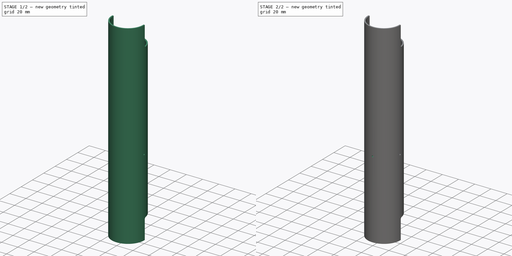
[diagram: build sequence overview — one tinted view per stage of 2, left to right]
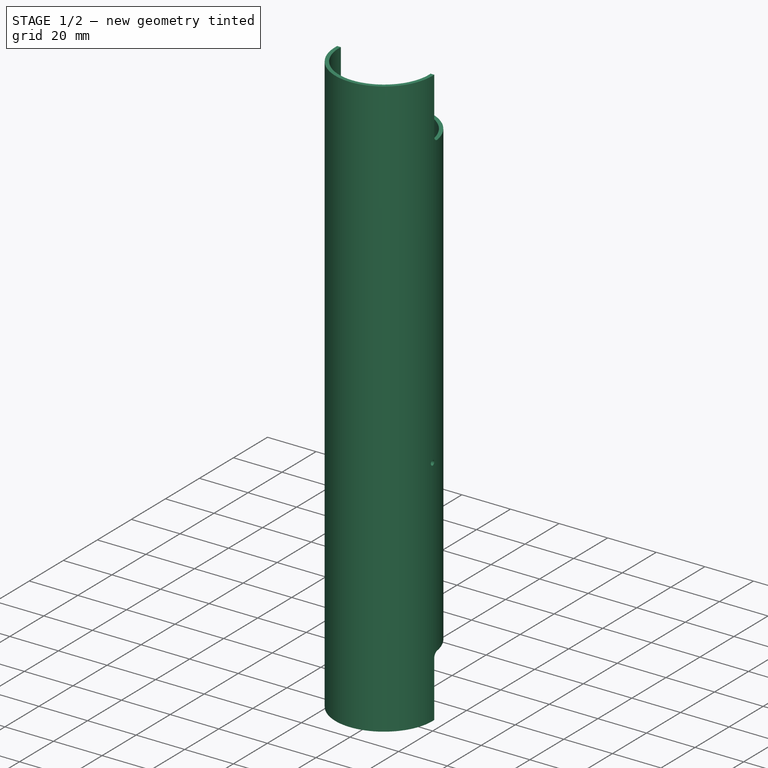
[diagram: stage 1 of 2 — iso view after this stage's code; geometry added in this stage tinted green]
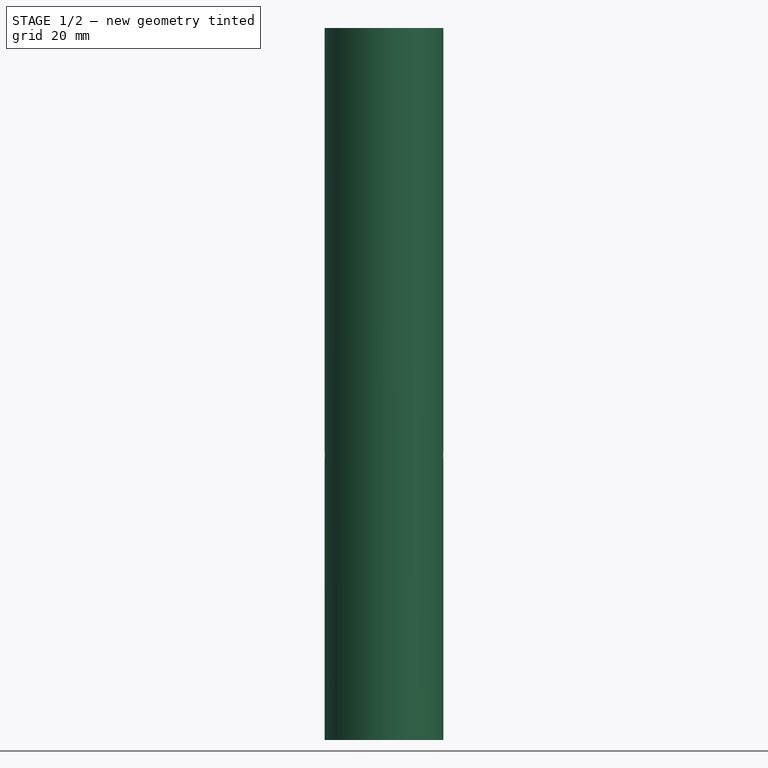
[diagram: stage 1 of 2 — front view after this stage's code; geometry added in this stage tinted green]
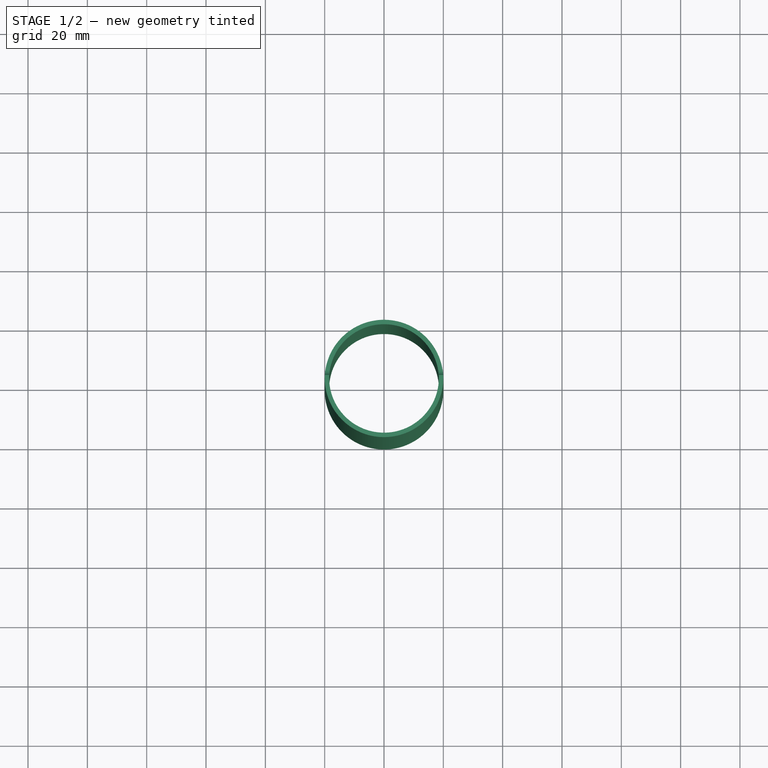
[diagram: stage 1 of 2 — top view after this stage's code; geometry added in this stage tinted green]
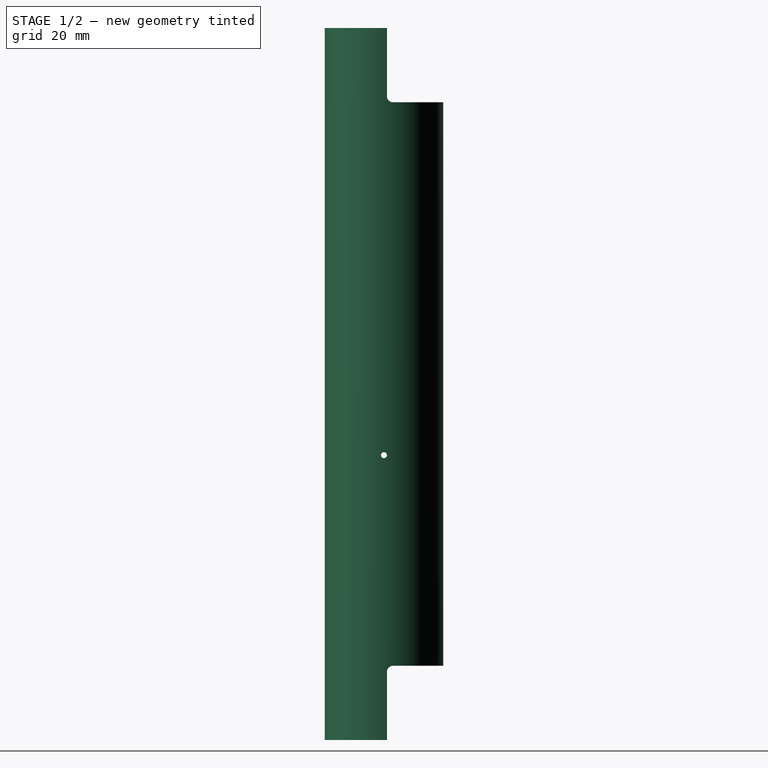
[diagram: stage 1 of 2 — right view after this stage's code; geometry added in this stage tinted green]
FCSTD DOCUMENT  (FreeCAD 0.17R5235 (Git shallow))
Label: C1001-1_symmetric_tube
License: All rights reserved
LicenseURL: http://en.wikipedia.org/wiki/All_rights_reserved
objects: Drawing::FeatureViewPython×23, Sketcher::SketchObject×3, PartDesign::Pocket×2, Drawing::FeatureViewPart×2, PartDesign::Pad×1, PartDesign::Body×1, Drawing::FeaturePage×1
note: 10 computed .brp shape members not serialized (recipe doc carries the construction recipe); baked Part::Feature solids carry a one-line shape summary decoded from their .brp

FEATURE [Sketcher::SketchObject] Sketch
  MapMode = 5
  sketch-geometry (2):
    g0: Circle CenterX=0 CenterY=0 CenterZ=0 NormalX=0 NormalY=0 NormalZ=1 AngleXU=0 Radius=20
    g1: Circle CenterX=0 CenterY=0 CenterZ=0 NormalX=0 NormalY=0 NormalZ=1 AngleXU=0 Radius=18.5
  constraints (4):
    c: Coincident(g0,g-1)
    c: Coincident(g1,g-1)
    c: Radius(g1) = 18.5
    c: Radius(g0) = 20
FEATURE [PartDesign::Pad] Pad
  Length = 240
  Length2 = 100
  Profile = -> Sketch
  Type = 0
FEATURE [Drawing::FeatureViewPython] text003  # drawing view (typed FeaturePython)
  Rotation = 0
  ViewResult = <g> <text x="12.500000" y="165.000000" font-family="inherit" font-size="3.6" fill="rgb(0,0,0)" text-anchor="inherit" transform="rotate(0.000000 12.500000,165.000000)" >1. Stock Material: 6063 Aluminum Tube OD40.0 TH1.5</text> </g>
  Visible = true
  X = 0
  Y = 0
  click1_x = 12.5
  click1_y = 165
  rotation = 0
  text = 1. Stock Material: 6063 Aluminum Tube OD40.0 TH1.5
  textRenderer_addText_color = rgb(0,0,0)
  textRenderer_addText_family = inherit
  textRenderer_addText_size = 3.6
FEATURE [Drawing::FeatureViewPython] text004  # drawing view (typed FeaturePython)
  Rotation = 0
  ViewResult = <g> <text x="12.500000" y="160.000000" font-family="inherit" font-size="3.6" fill="rgb(0,0,0)" text-anchor="inherit" transform="rotate(0.000000 12.500000,160.000000)" >Notes:</text> </g>
  Visible = true
  X = 0
  Y = 0
  click1_x = 12.5
  click1_y = 160
  rotation = 0
  text = Notes:
  textRenderer_addText_color = rgb(0,0,0)
  textRenderer_addText_family = inherit
  textRenderer_addText_size = 3.6
FEATURE [Drawing::FeatureViewPython] text006  # drawing view (typed FeaturePython)
  Rotation = 0
  ViewResult = <g> <text x="12.500000" y="199.000000" font-family="inherit" font-size="3.6" fill="rgb(0,0,0)" text-anchor="inherit" transform="rotate(0.000000 12.500000,199.000000)" >3. In variant -3, this procces (cut) is done only in one side, not in Zero Ref </text> </g>
  Visible = true
  X = 0
  Y = 0
  click1_x = 12.5
  click1_y = 199
  rotation = 0
  text = 3. In variant -3, this procces (cut) is done only in one side, not in Zero Ref 
  textRenderer_addText_color = rgb(0,0,0)
  textRenderer_addText_family = inherit
  textRenderer_addText_size = 3.6
FEATURE [Drawing::FeatureViewPython] text008  # drawing view (typed FeaturePython)
  Rotation = 0
  ViewResult = <g> <text x="12.500000" y="170.000000" font-family="inherit" font-size="3.6" fill="rgb(0,0,0)" text-anchor="inherit" transform="rotate(0.000000 12.500000,170.000000)" >2. In order to drill holes (1), use part C1021-1</text> </g>
  Visible = true
  X = 0
  Y = 0
  click1_x = 12.5
  click1_y = 170
  rotation = 0
  text = 2. In order to drill holes (1), use part C1021-1
  textRenderer_addText_color = rgb(0,0,0)
  textRenderer_addText_family = inherit
  textRenderer_addText_size = 3.6
FEATURE [Drawing::FeatureViewPython] text010  # drawing view (typed FeaturePython)
  Rotation = 0
  ViewResult = <g> <text x="12.500000" y="175.000000" font-family="inherit" font-size="3.6" fill="rgb(0,0,0)" text-anchor="inherit" transform="rotate(0.000000 12.500000,175.000000)" >2.a Aling the side of C1021-1 with Zero Ref and move it L-7.5 and drill the hole</text> </g>
  Visible = true
  X = 0
  Y = 0
  click1_x = 12.5
  click1_y = 175
  rotation = 0
  text = 2.a Aling the side of C1021-1 with Zero Ref and move it L-7.5 and drill the hole
  textRenderer_addText_color = rgb(0,0,0)
  textRenderer_addText_family = inherit
  textRenderer_addText_size = 3.6
FEATURE [Drawing::FeatureViewPython] text011  # drawing view (typed FeaturePython)
  Rotation = 0
  ViewResult = <g> <text x="12.500000" y="180.000000" font-family="inherit" font-size="3.6" fill="rgb(0,0,0)" text-anchor="inherit" transform="rotate(0.000000 12.500000,180.000000)" >2.b Remove C1021-1 from C1001-variant and put one M3 nut with M3 L10 DIN914</text> </g>
  Visible = true
  X = 0
  Y = 0
  click1_x = 12.5
  click1_y = 180
  rotation = 0
  text = 2.b Remove C1021-1 from C1001-variant and put one M3 nut with M3 L10 DIN914
  textRenderer_addText_color = rgb(0,0,0)
  textRenderer_addText_family = inherit
  textRenderer_addText_size = 3.6
FEATURE [Drawing::FeatureViewPython] text012  # drawing view (typed FeaturePython)
  Rotation = 0
  ViewResult = <g> <text x="12.500000" y="190.000000" font-family="inherit" font-size="3.6" fill="rgb(0,0,0)" text-anchor="inherit" transform="rotate(0.000000 12.500000,190.000000)" >! Zero Ref side and one side of C1021-1 must parallel to each other</text> </g>
  Visible = true
  X = 0
  Y = 0
  click1_x = 12.5
  click1_y = 190
  rotation = 0
  text = ! Zero Ref side and one side of C1021-1 must parallel to each other
  textRenderer_addText_color = rgb(0,0,0)
  textRenderer_addText_family = inherit
  textRenderer_addText_size = 3.6
FEATURE [Drawing::FeatureViewPython] text013  # drawing view (typed FeaturePython)
  Rotation = 0
  ViewResult = <g> <text x="12.500000" y="195.000000" font-family="inherit" font-size="3.6" fill="rgb(0,0,0)" text-anchor="inherit" transform="rotate(0.000000 12.500000,195.000000)" >2.c Drill the other 3 holes which are in the same diameter and 90deg offset</text> </g>
  Visible = true
  X = 0
  Y = 0
  click1_x = 12.5
  click1_y = 195
  rotation = 0
  text = 2.c Drill the other 3 holes which are in the same diameter and 90deg offset
  textRenderer_addText_color = rgb(0,0,0)
  textRenderer_addText_family = inherit
  textRenderer_addText_size = 3.6
FEATURE [Drawing::FeatureViewPython] text014  # drawing view (typed FeaturePython)
  Rotation = 0
  ViewResult = <g> <text x="18.500000" y="185.000000" font-family="inherit" font-size="3.6" fill="rgb(0,0,0)" text-anchor="inherit" transform="rotate(0.000000 18.500000,185.000000)" >set screw in order to lock the C1021-1 to the previous position (look A1020-1)</text> </g>
  Visible = true
  X = 0
  Y = 0
  click1_x = 18.5
  click1_y = 185
  rotation = 0
  text = set screw in order to lock the C1021-1 to the previous position (look A1020-1)
  textRenderer_addText_color = rgb(0,0,0)
  textRenderer_addText_family = inherit
  textRenderer_addText_size = 3.6
FEATURE [Sketcher::SketchObject] Sketch007
  MapMode = 5
  Placement = pos=(0,0,0) rot=(0.57735,0.57735,0.57735;2.0944rad)
  Support = -> [YZ_Plane]
  sketch-geometry (11):
    g0: Circle CenterX=0 CenterY=96 CenterZ=0 NormalX=0 NormalY=0 NormalZ=1 AngleXU=0 Radius=1
    g1: LineSegment StartX=1 StartY=0 StartZ=0 EndX=22 EndY=0 EndZ=0
    g2: LineSegment StartX=22 StartY=0 StartZ=0 EndX=22 EndY=25 EndZ=0
    g3: LineSegment StartX=22 StartY=25 StartZ=0 EndX=3 EndY=25 EndZ=0
    g4: LineSegment StartX=1 StartY=23 StartZ=0 EndX=1 EndY=0 EndZ=0
    g5: ArcOfCircle CenterX=3 CenterY=23 CenterZ=0 NormalX=0 NormalY=0 NormalZ=1 AngleXU=0 Radius=2 StartAngle=1.5708 EndAngle=3.14159
    g6: LineSegment StartX=1 StartY=240 StartZ=0 EndX=22 EndY=240 EndZ=0
    g7: LineSegment StartX=22 StartY=240 StartZ=0 EndX=22 EndY=215 EndZ=0
    g8: LineSegment StartX=22 StartY=215 StartZ=0 EndX=3 EndY=215 EndZ=0
    g9: LineSegment StartX=1 StartY=217 StartZ=0 EndX=1 EndY=240 EndZ=0
    g10: ArcOfCircle CenterX=3 CenterY=217 CenterZ=0 NormalX=0 NormalY=0 NormalZ=1 AngleXU=0 Radius=2 StartAngle=3.14159 EndAngle=4.71239
  constraints (31):
    c: PointOnObject(g0,g-2)
    c: Coincident(g1,g2)
    c: Coincident(g2,g3)
    c: Coincident(g4,g1)
    c: Horizontal(g1)
    c: Horizontal(g3)
    c: Vertical(g2)
    c: Vertical(g4)
    c: PointOnObject(g1,g-1)
    c: Tangent(g3,g5) = -1.5708
    c: Tangent(g4,g5) = -1.5708
    c: Radius(g5) = 2
    c: DistanceY(g1,g2) = 25
    c: DistanceX(g-1,g1) = 22
    c: DistanceX(g-1,g4) = 1
    c: DistanceY(g1,g0) = 96
    c: Radius(g0) = 1
    c: Coincident(g6,g7)
    c: Coincident(g7,g8)
    c: Coincident(g9,g6)
    c: Horizontal(g6)
    c: Horizontal(g8)
    c: Vertical(g7)
    c: Vertical(g9)
    c: Tangent(g8,g10) = 1.5708
    c: Tangent(g9,g10) = 1.5708
    c: Equal(g10,g5)
    c: PointOnObject(g4,g9)
    c: PointOnObject(g7,g2)
    c: Equal(g7,g2)
    c: DistanceY(g1,g6) = 240
FEATURE [PartDesign::Pocket] Pocket
  BaseFeature = -> Pad
  Length = 5
  Length2 = 100
  Midplane = true
  Profile = -> Sketch007
  Reversed = true
  Type = 1
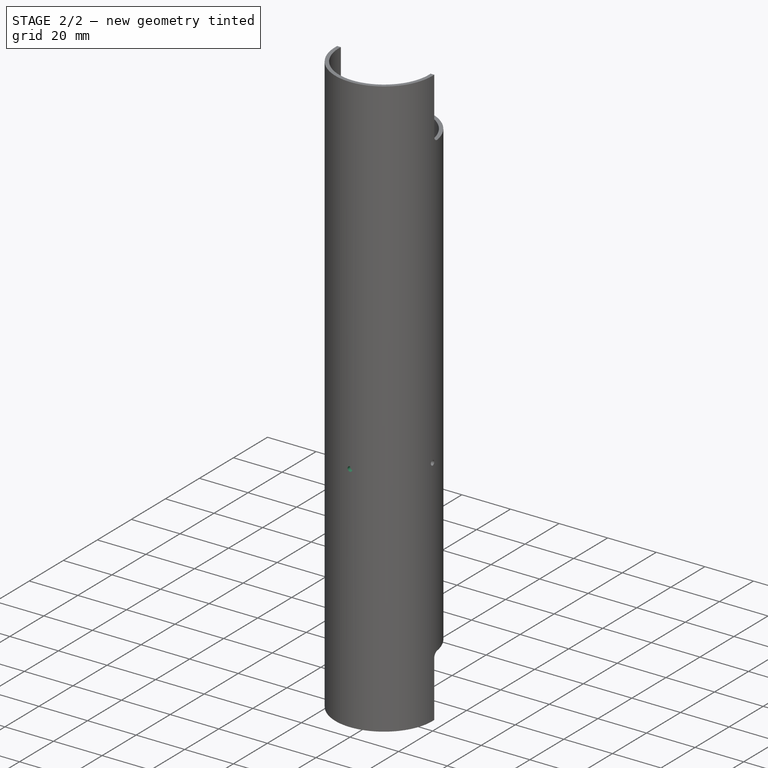
[diagram: stage 2 of 2 — iso view after this stage's code; geometry added in this stage tinted green]
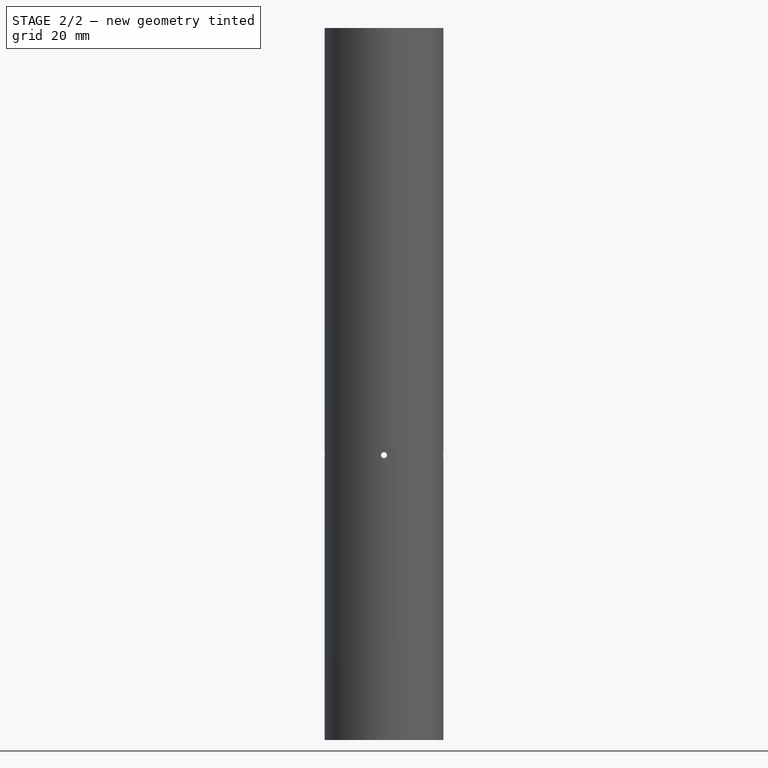
[diagram: stage 2 of 2 — front view after this stage's code; geometry added in this stage tinted green]
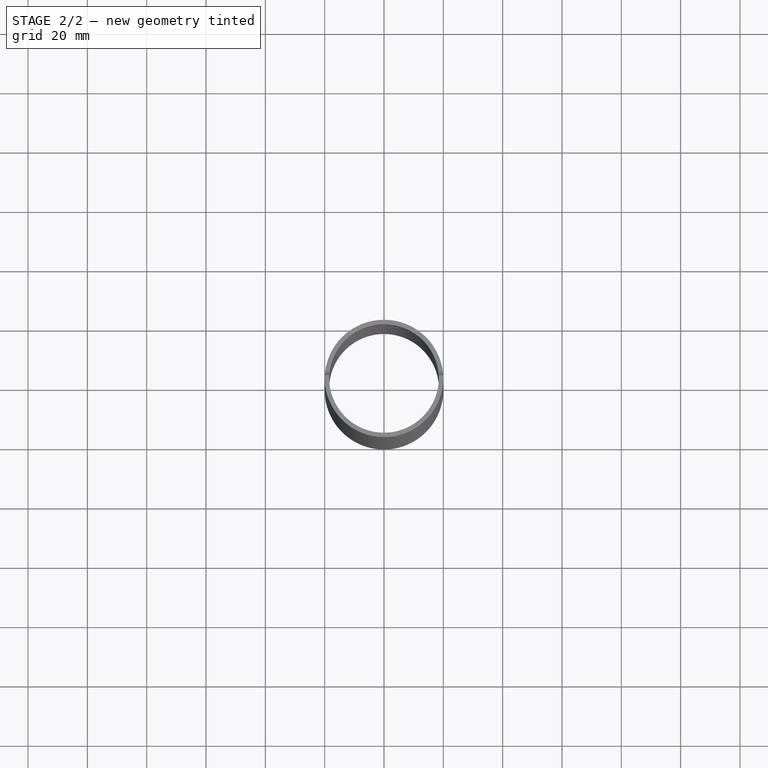
[diagram: stage 2 of 2 — top view after this stage's code; geometry added in this stage tinted green]
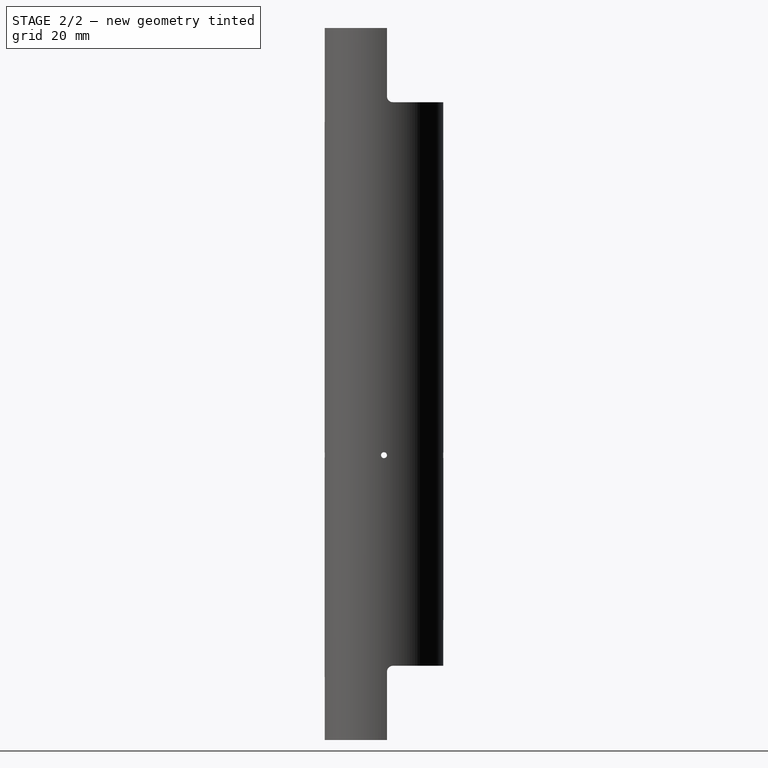
[diagram: stage 2 of 2 — right view after this stage's code; geometry added in this stage tinted green]
FEATURE [Sketcher::SketchObject] Sketch008
  MapMode = 5
  Placement = pos=(0,0,0) rot=(1,0,0;1.5708rad)
  Support = -> [XZ_Plane]
  sketch-geometry (1):
    g0: Circle CenterX=0 CenterY=96 CenterZ=0 NormalX=0 NormalY=0 NormalZ=1 AngleXU=0 Radius=1
  constraints (3):
    c: PointOnObject(g0,g-2)
    c: Radius(g0) = 1
    c: DistanceY(g-1,g0) = 96
FEATURE [PartDesign::Pocket] Pocket001
  BaseFeature = -> Pocket
  Length = 5
  Length2 = 100
  Midplane = true
  Profile = -> Sketch008
  Type = 1
FEATURE [PartDesign::Body] Body
  Group = -> [Sketch,Pad,Sketch007,Pocket,Sketch008,Pocket001]
  Origin = -> Origin
  Tip = -> Pocket001
FEATURE [Drawing::FeatureViewPython] table001  # drawing view (typed FeaturePython)
  Rotation = 0
  ViewResult = <g transform="translate(20.000000,17.500000)" > <line x1="0.000000" y1="0.000000" x2="30.000000" y2="0.000000" style="stroke:rgb(0,0,0);stroke-width:0.30" />\n<line x1="0.000000" y1="7.000000" x2="30.000000" y2="7.000000" style="stroke:rgb(0,0,0);stroke-width:0.30" />\n<line x1="0.000000" y1="14.000000" x2="30.000000" y2="14.000000" style="stroke:rgb(0,0,0);stroke-width:0.30" />\n<line x1="0.000000" y1="21.000000" x2="30.000000" y2="21.000000" style="stroke:rgb(0,0,0);stroke-width:0.30" />\n<line x1="0.000000" y1="0.000000" x2="0.000000" y2="21.000000" style="stroke:rgb(0,0,0);stroke-width:0.30" />\n<line x1="20.000000" y1="0.000000" x2="20.000000" y2="21.000000" style="stroke:rgb(0,0,0);stroke-width:0.30" />\n<line x1="30.000000" y1="0.000000" x2="30.000000" y2="21.000000" style="stroke:rgb(0,0,0);stroke-width:0.30" />\n<text x="1.000000" y="6.000000" font-family="inherit" font-size="3.6" fill="rgb(0,0,0)" text-anchor="inherit"  >VARIANT</text>\n<text x="21.000000" y="6.000000" font-family="inherit" font-size="3.6" fill="rgb(0,0,0)" text-anchor="inherit"  >L</text>\n<text x="1.000000" y="13.000000" font-family="inherit" font-size="3.6" fill="rgb(0,0,0)" text-anchor="inherit"  >-1</text>\n<text x="21.000000" y="13.000000" font-family="inherit" font-size="3.6" fill="rgb(0,0,0)" text-anchor="inherit"  >96</text>\n<text x="1.000000" y="20.000000" font-family="inherit" font-size="3.6" fill="rgb(0,0,0)" text-anchor="inherit"  >-3</text>\n<text x="21.000000" y="20.000000" font-family="inherit" font-size="3.6" fill="rgb(0,0,0)" text-anchor="inherit"  >52</text> </g>
  Visible = true
  X = 0
  Y = 0
  border_color = rgb(0,0,0)
  border_width = 0.3
  click1_x = 20
  click1_y = 17.5
  column_widths = [20,10]
  contents = VARIANT | L | -1 | 96 | -3 | 52
  extra_rows = 0
  padding_x = 1
  padding_y = 1
  row_heights = [7]
  textRenderer_table_color = rgb(0,0,0)
  textRenderer_table_family = inherit
  textRenderer_table_size = 3.6
FEATURE [Drawing::FeatureViewPart] Ortho  label="Ortho_0_0"
  Direction = (-1,0,0)
  HiddenWidth = 0.15
  LineWidth = 0.35
  Rotation = 180
  Scale = 0.5
  ShowHiddenLines = true
  ShowSmoothLines = true
  Source = -> Pocket001
  Tolerance = 0.05
  ViewResult = <blob: 16993 chars omitted>
  Visible = true
  X = 88.5
  Y = 108.667
FEATURE [Drawing::FeatureViewPart] Ortho002  label="Ortho_1_1"
  Direction = (0.57735,0.57735,0.57735)
  HiddenWidth = 0.15
  LineWidth = 0.35
  Rotation = 60
  Scale = 0.5
  ShowHiddenLines = false
  ShowSmoothLines = true
  Source = -> Pocket001
  Tolerance = 0.05
  ViewResult = <blob: 4982 chars omitted>
  Visible = true
  X = 270
  Y = 78
FEATURE [Drawing::FeatureViewPython] dim001  # drawing view (typed FeaturePython)
  Rotation = 0
  ViewResult = <g> <line x1="99.000000" y1="99.417000" x2="63.500000" y2="99.417000" style="stroke:rgb(0,0,0);stroke-width:0.20" />\n<line x1="86.500000" y1="117.917000" x2="63.500000" y2="117.917000" style="stroke:rgb(0,0,0);stroke-width:0.20" />\n<line x1="64.500000" y1="99.417000" x2="64.500000" y2="117.917000" style="stroke:rgb(0,0,0);stroke-width:0.20" />\n<polygon points="64.500000,99.417000 63.500000,102.417000 64.500000,103.417000 65.500000,102.417000" style="fill:rgb(0,0,0);stroke:rgb(0,0,0);stroke-width:0" />\n<polygon points="64.500000,117.917000 65.500000,114.917000 64.500000,113.917000 63.500000,114.917000" style="fill:rgb(0,0,0);stroke:rgb(0,0,0);stroke-width:0" />\n<text x="62.500000" y="108.667000" font-family="inherit" font-size="3.6" fill="rgb(0,0,0)" text-anchor="middle" transform="rotate(-90.000000 62.500000,108.667000)" >37</text> </g> 
  Visible = true
  X = 0
  Y = 0
  arrowL1 = 3
  arrowL2 = 1
  arrowW = 2
  arrow_scheme = 0
  autoPlaceOffset = 2
  autoPlaceText = true
  click1_x = 64.5
  click1_y = 103.5
  click2_x = 64.5
  click2_y = 103.5
  comma_decimal_place = true
  dimension_line_overshoot = 1
  gap_datum_points = 2
  halfDimension_linear = false
  lineColor = rgb(0,0,0)
  strokeWidth = 0.2
  textFormat_linear = %(value)3.1f
  textRenderer_color = rgb(0,0,0)
  textRenderer_family = inherit
  textRenderer_size = 3.6
  unit_custom_scale = 1
  unit_scheme = 0
FEATURE [Drawing::FeatureViewPython] dim002  # drawing view (typed FeaturePython)
  Rotation = 0
  ViewResult = <g> <line x1="99.000000" y1="98.667000" x2="53.000000" y2="98.667000" style="stroke:rgb(0,0,0);stroke-width:0.20" />\n<line x1="86.500000" y1="118.667000" x2="53.000000" y2="118.667000" style="stroke:rgb(0,0,0);stroke-width:0.20" />\n<line x1="54.000000" y1="98.667000" x2="54.000000" y2="118.667000" style="stroke:rgb(0,0,0);stroke-width:0.20" />\n<polygon points="54.000000,98.667000 53.000000,101.667000 54.000000,102.667000 55.000000,101.667000" style="fill:rgb(0,0,0);stroke:rgb(0,0,0);stroke-width:0" />\n<polygon points="54.000000,118.667000 55.000000,115.667000 54.000000,114.667000 53.000000,115.667000" style="fill:rgb(0,0,0);stroke:rgb(0,0,0);stroke-width:0" />\n<text x="52.000000" y="108.667000" font-family="inherit" font-size="3.6" fill="rgb(0,0,0)" text-anchor="middle" transform="rotate(-90.000000 52.000000,108.667000)" >40</text> </g> 
  Visible = true
  X = 0
  Y = 0
  arrowL1 = 3
  arrowL2 = 1
  arrowW = 2
  arrow_scheme = 0
  autoPlaceOffset = 2
  autoPlaceText = true
  click1_x = 54
  click1_y = 106
  click2_x = 54
  click2_y = 106
  comma_decimal_place = true
  dimension_line_overshoot = 1
  gap_datum_points = 2
  halfDimension_linear = false
  lineColor = rgb(0,0,0)
  strokeWidth = 0.2
  textFormat_linear = %(value)3.1f
  textRenderer_color = rgb(0,0,0)
  textRenderer_family = inherit
  textRenderer_size = 3.6
  unit_custom_scale = 1
  unit_scheme = 0
FEATURE [Drawing::FeatureViewPython] dim003  # drawing view (typed FeaturePython)
  Rotation = 0
  ViewResult = <g> \n  <line x1="88.500000" y1="120.600050" x2="88.500000" y2="141.000000" style="stroke:rgb(0,0,0);stroke-width:0.20" />\n<line x1="208.500000" y1="120.600050" x2="208.500000" y2="141.000000" style="stroke:rgb(0,0,0);stroke-width:0.20" />\n<line x1="88.500000" y1="140.000000" x2="208.500000" y2="140.000000" style="stroke:rgb(0,0,0);stroke-width:0.20" /> \n  <polygon points="208.500000,140.000000 205.500000,139.000000 204.500000,140.000000 205.500000,141.000000" style="fill:rgb(0,0,0);stroke:rgb(0,0,0);stroke-width:0" /><polygon points="88.500000,140.000000 91.500000,141.000000 92.500000,140.000000 91.500000,139.000000" style="fill:rgb(0,0,0);stroke:rgb(0,0,0);stroke-width:0" /> \n  <text x="148.500000" y="138.000000" font-family="inherit" font-size="3.6" fill="rgb(0,0,0)" text-anchor="middle" transform="rotate(0.000000 148.500000,138.000000)" >240</text> </g>
  Visible = true
  X = 0
  Y = 0
  arrowL1 = 3
  arrowL2 = 1
  arrowW = 2
  arrow_scheme = 0
  autoPlaceOffset = 2
  autoPlaceText = true
  click1_x = 147.5
  click1_y = 140
  click2_x = 147.5
  click2_y = 140
  comma_decimal_place = true
  dimension_line_overshoot = 1
  gap_datum_points = 2
  halfDimension_linear = false
  lineColor = rgb(0,0,0)
  strokeWidth = 0.2
  textFormat_linear = %(value)3.1f
  textRenderer_color = rgb(0,0,0)
  textRenderer_family = inherit
  textRenderer_size = 3.6
  unit_custom_scale = 1
  unit_scheme = 0
FEATURE [Drawing::FeatureViewPython] dim004  # drawing view (typed FeaturePython)
  Rotation = 0
  ViewResult = <g> \n  <line x1="136.500000" y1="111.167000" x2="136.500000" y2="133.000000" style="stroke:rgb(0,0,0);stroke-width:0.20" />\n<line x1="88.500000" y1="120.600050" x2="88.500000" y2="133.000000" style="stroke:rgb(0,0,0);stroke-width:0.20" />\n<line x1="136.500000" y1="132.000000" x2="88.500000" y2="132.000000" style="stroke:rgb(0,0,0);stroke-width:0.20" /> \n  <polygon points="88.500000,132.000000 91.500000,133.000000 92.500000,132.000000 91.500000,131.000000" style="fill:rgb(0,0,0);stroke:rgb(0,0,0);stroke-width:0" /><polygon points="136.500000,132.000000 133.500000,131.000000 132.500000,132.000000 133.500000,133.000000" style="fill:rgb(0,0,0);stroke:rgb(0,0,0);stroke-width:0" /> \n  <text x="112.500000" y="130.000000" font-family="inherit" font-size="3.6" fill="rgb(0,0,0)" text-anchor="middle" transform="rotate(0.000000 112.500000,130.000000)" >L</text> </g>
  Visible = true
  X = 0
  Y = 0
  arrowL1 = 3
  arrowL2 = 1
  arrowW = 2
  arrow_scheme = 0
  autoPlaceOffset = 2
  autoPlaceText = true
  click1_x = 114.5
  click1_y = 132
  click2_x = 114.5
  click2_y = 132
  comma_decimal_place = true
  dimension_line_overshoot = 1
  gap_datum_points = 2
  halfDimension_linear = false
  lineColor = rgb(0,0,0)
  strokeWidth = 0.2
  textFormat_linear = L
  textRenderer_color = rgb(0,0,0)
  textRenderer_family = inherit
  textRenderer_size = 3.6
  unit_custom_scale = 1
  unit_scheme = 0
FEATURE [Drawing::FeatureViewPython] dia001  # drawing view (typed FeaturePython)
  Rotation = 0
  ViewResult = <g>  <circle cx ="136.500025" cy ="108.666932" r="0.500000" stroke="none" fill="rgb(0,0,0)" /> \n<line x1="142.500000" y1="106.500000" x2="136.029816" y2="108.836752" style="stroke:rgb(0,0,0);stroke-width:0.20" />\n<polygon points="136.970234,108.497113 140.131537,108.418606 140.732395,107.138383 139.452172,106.537525" style="fill:rgb(0,0,0);stroke:rgb(0,0,0);stroke-width:0" />\n<polygon points="136.029816,108.836752 132.868513,108.915259 132.267656,110.195482 133.547878,110.796340" style="fill:rgb(0,0,0);stroke:rgb(0,0,0);stroke-width:0" />\n<line x1="142.500000" y1="106.500000" x2="148.500000" y2="106.500000" style="stroke:rgb(0,0,0);stroke-width:0.20" />\n<text x="145.500000" y="104.500000" font-family="inherit" font-size="3.6" fill="rgb(0,0,0)" text-anchor="middle" transform="rotate(0.000000 145.500000,104.500000)" >Ø2</text> </g>
  Visible = true
  X = 0
  Y = 0
  arrowL1 = 3
  arrowL2 = 1
  arrowW = 2
  arrow_scheme = 0
  autoPlaceOffset = 2
  autoPlaceText = true
  centerPointDia = 1
  click1_x = 142.5
  click1_y = 106.5
  click2_x = 148.5
  click2_y = 106
  click3_x = 148.5
  click3_y = 106
  comma_decimal_place = true
  lineColor = rgb(0,0,0)
  strokeWidth = 0.2
  textFormat_circular = Ø%(value)3.3f
  textRenderer_color = rgb(0,0,0)
  textRenderer_family = inherit
  textRenderer_size = 3.6
  unit_custom_scale = 1
  unit_scheme = 0
FEATURE [Drawing::FeatureViewPython] text002  # drawing view (typed FeaturePython)
  Rotation = 0
  ViewResult = <g> <text x="149.000000" y="104.500000" font-family="inherit" font-size="3.6" fill="rgb(0,0,0)" text-anchor="inherit" transform="rotate(0.000000 149.000000,104.500000)" >Drill Hole, Thru.</text> </g>
  Visible = true
  X = 0
  Y = 0
  click1_x = 149
  click1_y = 104.5
  rotation = 0
  text = Drill Hole, Thru.
  textRenderer_addText_color = rgb(0,0,0)
  textRenderer_addText_family = inherit
  textRenderer_addText_size = 3.6
FEATURE [Drawing::FeatureViewPython] weld001  # drawing view (typed FeaturePython)
  Rotation = 0
  ViewResult = <g   >\n<line x1="210.000000" y1="100.000000" x2="196.195500" y2="107.761120" style="stroke:rgb(0,0,0);stroke-width:0.20" />\n<polygon points="196.195500,107.761120 199.300617,107.162580 199.682224,105.800826 198.320470,105.419218" style="fill:rgb(0,0,0);stroke:rgb(0,0,0);stroke-width:0" />\n<line x1="210.000000" y1="100.000000" x2="227.000000" y2="100.000000" style="stroke:rgb(0,0,0);stroke-width:0.20" />\n</g> 
  Visible = true
  X = 0
  Y = 0
  arrowL1 = 3
  arrowL2 = 1
  arrowW = 2
  click1_x = 210
  click1_y = 100
  click2_x = 227
  click2_y = 99
  lineColor = rgb(0,0,0)
  strokeWidth = 0.2
  textRenderer_color = rgb(0,0,0)
  textRenderer_family = inherit
  textRenderer_size = 3.6
FEATURE [Drawing::FeatureViewPython] text001  # drawing view (typed FeaturePython)
  Rotation = 0
  ViewResult = <g> <text x="210.000000" y="99.000000" font-family="inherit" font-size="3.6" fill="rgb(0,0,0)" text-anchor="inherit" transform="rotate(0.000000 210.000000,99.000000)" >Typical R2</text> </g>
  Visible = true
  X = 0
  Y = 0
  click1_x = 210
  click1_y = 99
  rotation = 0
  text = Typical R2
  textRenderer_addText_color = rgb(0,0,0)
  textRenderer_addText_family = inherit
  textRenderer_addText_size = 3.6
FEATURE [Drawing::FeatureViewPython] dim005  # drawing view (typed FeaturePython)
  Rotation = 0
  ViewResult = <g> <line x1="210.500000" y1="118.667000" x2="228.500000" y2="118.667000" style="stroke:rgb(0,0,0);stroke-width:0.20" />\n<line x1="210.500000" y1="108.167000" x2="228.500000" y2="108.167000" style="stroke:rgb(0,0,0);stroke-width:0.20" />\n<line x1="227.500000" y1="118.667000" x2="227.500000" y2="108.167000" style="stroke:rgb(0,0,0);stroke-width:0.20" />\n<polygon points="227.500000,118.667000 228.500000,115.667000 227.500000,114.667000 226.500000,115.667000" style="fill:rgb(0,0,0);stroke:rgb(0,0,0);stroke-width:0" />\n<polygon points="227.500000,108.167000 226.500000,111.167000 227.500000,112.167000 228.500000,111.167000" style="fill:rgb(0,0,0);stroke:rgb(0,0,0);stroke-width:0" />\n<text x="225.500000" y="113.417000" font-family="inherit" font-size="3.6" fill="rgb(0,0,0)" text-anchor="middle" transform="rotate(-90.000000 225.500000,113.417000)" >21</text> </g> 
  Visible = true
  X = 0
  Y = 0
  arrowL1 = 3
  arrowL2 = 1
  arrowW = 2
  arrow_scheme = 0
  autoPlaceOffset = 2
  autoPlaceText = true
  click1_x = 227.5
  click1_y = 112.5
  click2_x = 227.5
  click2_y = 112.5
  comma_decimal_place = true
  dimension_line_overshoot = 1
  gap_datum_points = 2
  halfDimension_linear = false
  lineColor = rgb(0,0,0)
  strokeWidth = 0.2
  textFormat_linear = %(value)3.1f
  textRenderer_color = rgb(0,0,0)
  textRenderer_family = inherit
  textRenderer_size = 3.6
  unit_custom_scale = 1
  unit_scheme = 0
FEATURE [Drawing::FeatureViewPython] dim007  # drawing view (typed FeaturePython)
  Rotation = 0
  ViewResult = <g> \n  <line x1="88.500000" y1="106.167000" x2="88.500000" y2="84.500000" style="stroke:rgb(0,0,0);stroke-width:0.20" />\n<line x1="101.000000" y1="97.126550" x2="101.000000" y2="84.500000" style="stroke:rgb(0,0,0);stroke-width:0.20" />\n<line x1="88.500000" y1="85.500000" x2="101.000000" y2="85.500000" style="stroke:rgb(0,0,0);stroke-width:0.20" /> \n  <polygon points="101.000000,85.500000 98.000000,84.500000 97.000000,85.500000 98.000000,86.500000" style="fill:rgb(0,0,0);stroke:rgb(0,0,0);stroke-width:0" /><polygon points="88.500000,85.500000 91.500000,86.500000 92.500000,85.500000 91.500000,84.500000" style="fill:rgb(0,0,0);stroke:rgb(0,0,0);stroke-width:0" /> \n  <text x="94.750000" y="83.500000" font-family="inherit" font-size="3.6" fill="rgb(0,0,0)" text-anchor="middle" transform="rotate(0.000000 94.750000,83.500000)" >25</text> </g>
  Visible = true
  X = 0
  Y = 0
  arrowL1 = 3
  arrowL2 = 1
  arrowW = 2
  arrow_scheme = 0
  autoPlaceOffset = 2
  autoPlaceText = true
  click1_x = 94
  click1_y = 85.5
  click2_x = 94
  click2_y = 85.5
  comma_decimal_place = true
  dimension_line_overshoot = 1
  gap_datum_points = 2
  halfDimension_linear = false
  lineColor = rgb(0,0,0)
  strokeWidth = 0.2
  textFormat_linear = %(value)3.1f
  textRenderer_color = rgb(0,0,0)
  textRenderer_family = inherit
  textRenderer_size = 3.6
  unit_custom_scale = 1
  unit_scheme = 0
FEATURE [Drawing::FeatureViewPython] weld002  # drawing view (typed FeaturePython)
  Rotation = 0
  ViewResult = <g   >\n<line x1="81.000000" y1="132.000000" x2="88.500000" y2="118.633525" style="stroke:rgb(0,0,0);stroke-width:0.20" />\n<polygon points="88.500000,118.633525 86.159894,120.760472 86.542652,122.121904 87.904084,121.739146" style="fill:rgb(0,0,0);stroke:rgb(0,0,0);stroke-width:0" />\n<line x1="81.000000" y1="132.000000" x2="63.500000" y2="132.000000" style="stroke:rgb(0,0,0);stroke-width:0.20" />\n</g> 
  Visible = true
  X = 0
  Y = 0
  arrowL1 = 3
  arrowL2 = 1
  arrowW = 2
  click1_x = 81
  click1_y = 132
  click2_x = 63.5
  click2_y = 132.5
  lineColor = rgb(0,0,0)
  strokeWidth = 0.2
  textRenderer_color = rgb(0,0,0)
  textRenderer_family = inherit
  textRenderer_size = 3.6
FEATURE [Drawing::FeatureViewPython] text005  # drawing view (typed FeaturePython)
  Rotation = 0
  ViewResult = <g> <text x="63.500000" y="131.500000" font-family="inherit" font-size="3.6" fill="rgb(0,0,0)" text-anchor="inherit" transform="rotate(0.000000 63.500000,131.500000)" >Zero Ref</text> </g>
  Visible = true
  X = 0
  Y = 0
  click1_x = 63.5
  click1_y = 131.5
  rotation = 0
  text = Zero Ref
  textRenderer_addText_color = rgb(0,0,0)
  textRenderer_addText_family = inherit
  textRenderer_addText_size = 3.6
FEATURE [Drawing::FeatureViewPython] noteCircle001  # drawing view (typed FeaturePython)
  Rotation = 0
  ViewResult = <g> <line x1="223.000000" y1="78.000000" x2="235.896666" y2="66.833892" style="stroke:rgb(0,0,0);stroke-width:0.20" />\n<line x1="223.000000" y1="78.000000" x2="210.500000" y2="78.000000" style="stroke:rgb(0,0,0);stroke-width:0.20" />\n <circle cx ="210.500000" cy ="78.000000" r="4.500000" stroke="rgb(0,0,0)" fill="rgb(255,255,255)" /> \n<text x="209.000000" y="79.500000" font-family="inherit" font-size="5" fill="rgb(0,0,0)" text-anchor="inherit"  >1</text> </g>
  Visible = true
  X = 0
  Y = 0
  click1_x = 223
  click1_y = 78
  click2_x = 210.5
  click2_y = 80
  lineColor = rgb(0,0,0)
  noteCircle_fill = rgb(255,255,255)
  noteCircle_radius = 4.5
  noteText = 1
  strokeWidth = 0.2
  textRenderer_noteCircle_color = rgb(0,0,0)
  textRenderer_noteCircle_family = inherit
  textRenderer_noteCircle_size = 5
FEATURE [Drawing::FeaturePage] Page
  EditableTexts = Azisi | 19/08/2018 | 1:2 | N/A | C1001 | Symmetric and Asymmetric Shaft | 1/1 | B | DIN ISO 2768- mk | - | NOTES
  Group = -> [text003,text004,table001,text006,text008,text010,text011,text012,text013,text014,Ortho,Ortho002,dim001,dim002,dim003,dim004,dia001,text002,weld001,text001,dim005,dim007,weld002,text005,noteCircle001]
  Template = <userpath>/Documents/lsf-templates/freecad-template/A4_Landscape_lsf_drawing.svg
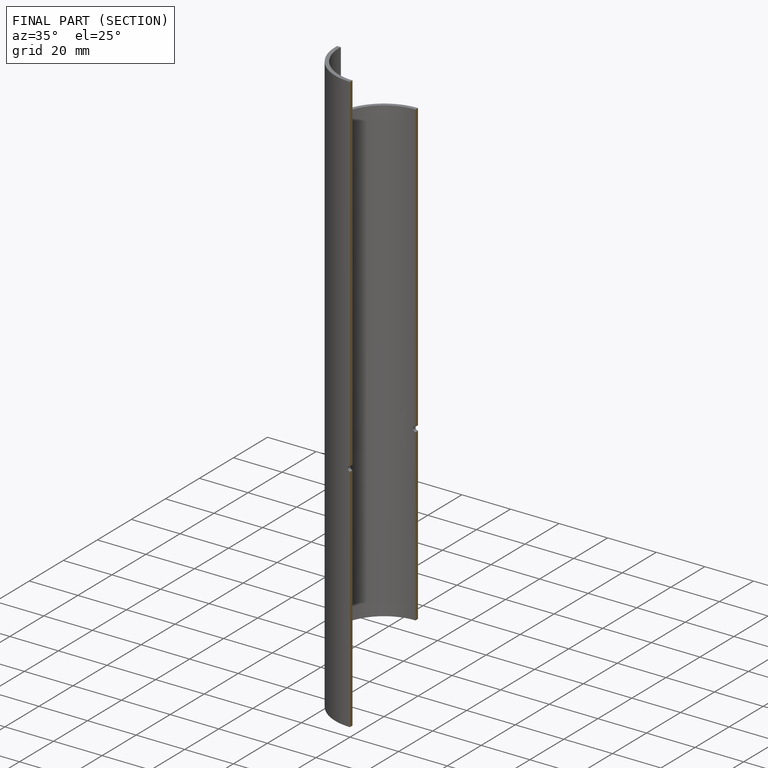
[diagram: finished part — half-section view (interior)]
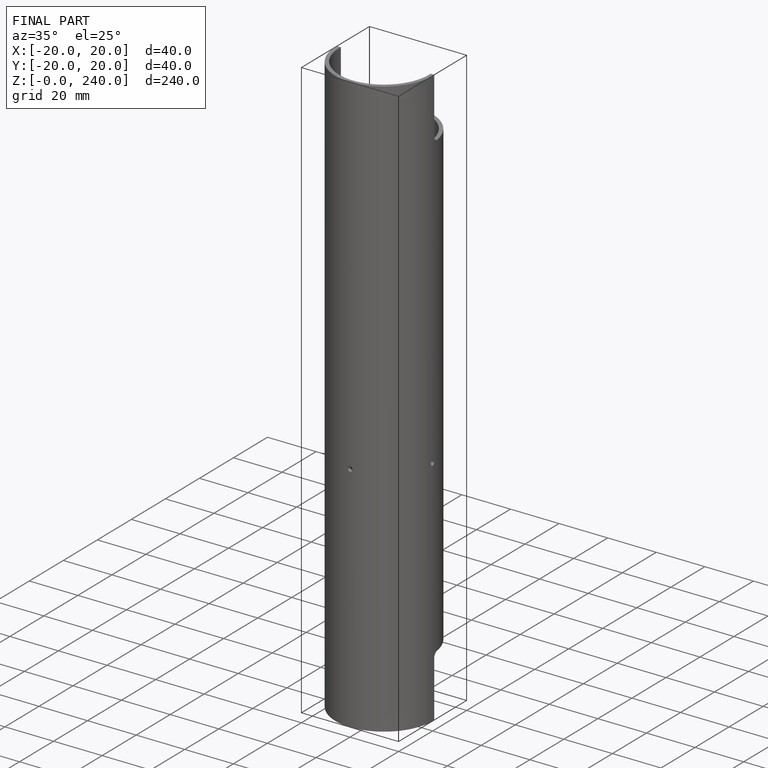
[diagram: finished part — iso view with bounding-box wireframe]
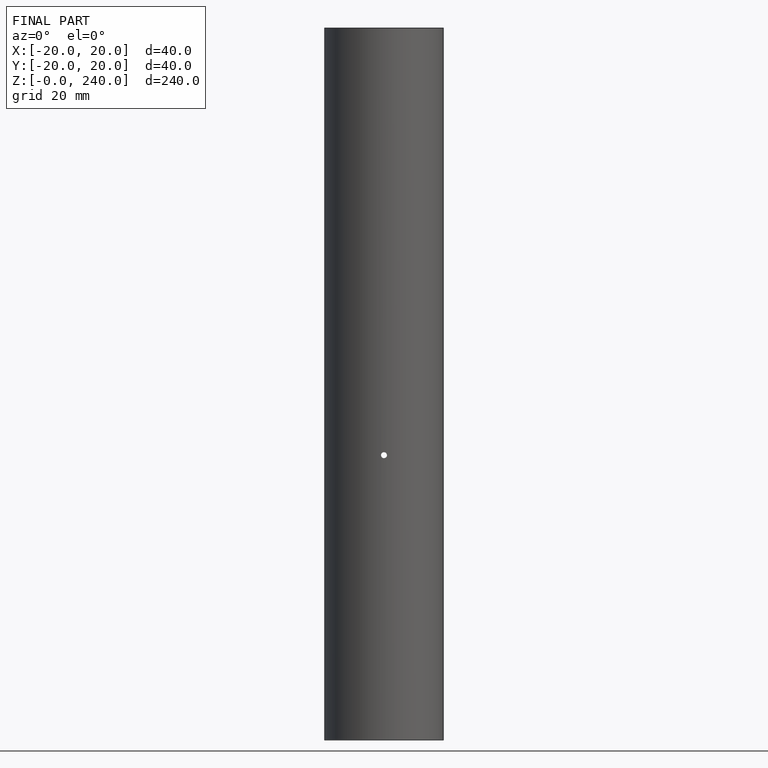
[diagram: finished part — front view with bounding-box wireframe]
